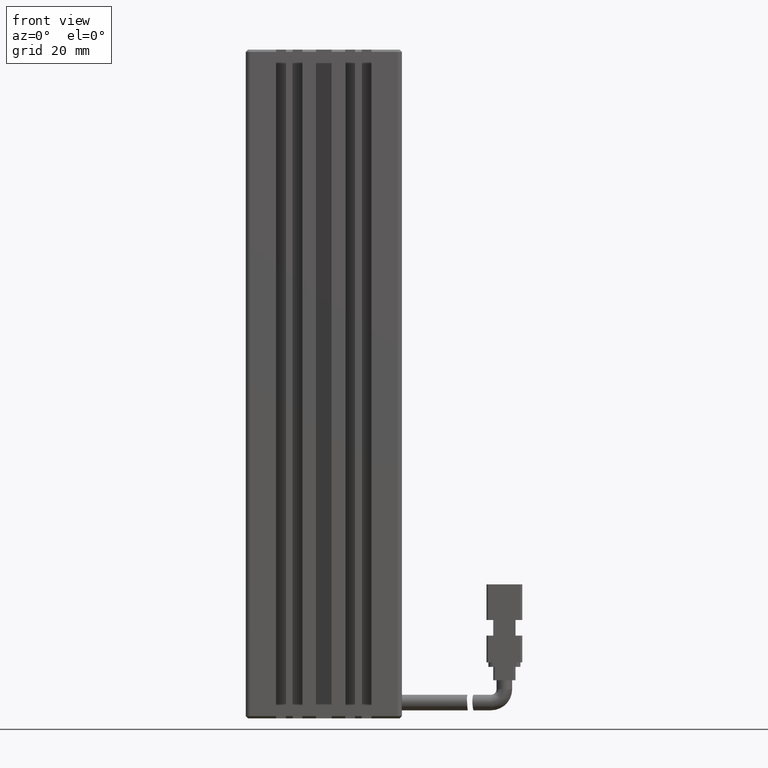
[diagram: clean part render]
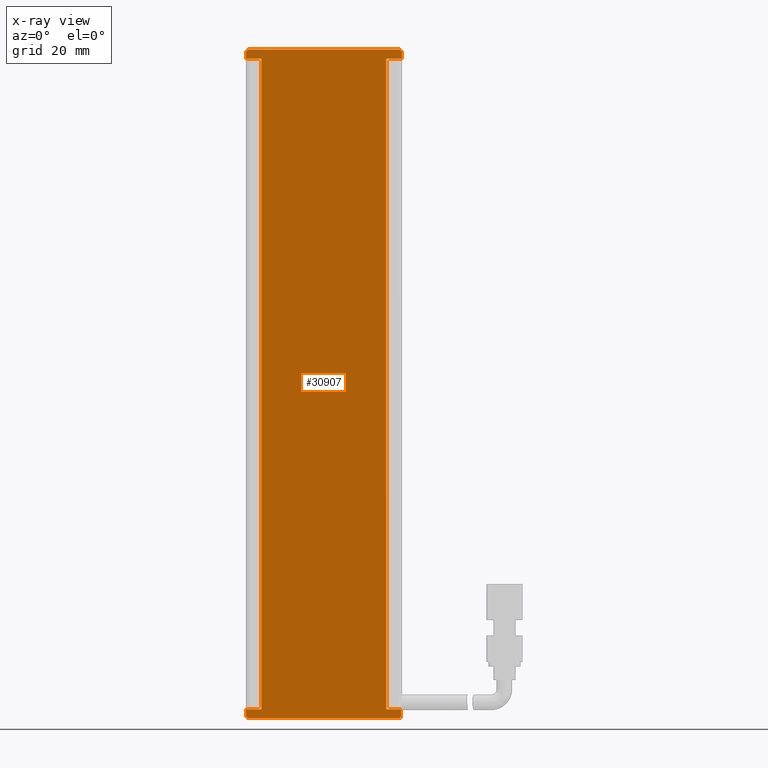
[diagram: x-ray — body ghosted, one internal face saturated and labeled with its STEP entity id]
A machine part, front view, then the same camera in x-ray: the body is ghosted and one INTERNAL B-rep face — a face not visible from any outside direction — is saturated and labeled: STEP entity #30907.
In plain terms, the highlighted planar face has unit normal (0, -1, 0).
Its self-contained STEP definition (entity closure, byte-faithful):
#1647 = ORIENTED_EDGE ( 'NONE', *, *, #33229, .F. ) ;
#2232 = EDGE_CURVE ( 'NONE', #3684, #61801, #3594, .T. ) ;
#2883 = CARTESIAN_POINT ( 'NONE',  ( 23.42537974683542100, 19.49073232304836600, -188.0000000000000000 ) ) ;
#3594 = LINE ( 'NONE', #28041, #46405 ) ;
#3684 = VERTEX_POINT ( 'NONE', #45378 ) ;
#3824 = DIRECTION ( 'NONE',  ( 1.000000000000000000, 1.239088197126290600E-016, 0.0000000000000000000 ) ) ;
#4135 = LINE ( 'NONE', #57680, #51954 ) ;
#4251 = DIRECTION ( 'NONE',  ( 1.000000000000000000, 1.239088197126290600E-016, 0.0000000000000000000 ) ) ;
#5557 = DIRECTION ( 'NONE',  ( 0.0000000000000000000, -0.0000000000000000000, -1.000000000000000000 ) ) ;
#7030 = CARTESIAN_POINT ( 'NONE',  ( 23.92537974683539700, 19.49073232304836600, -40.00000000000000700 ) ) ;
#8715 = EDGE_CURVE ( 'NONE', #18840, #54037, #47961, .T. ) ;
#8861 = ORIENTED_EDGE ( 'NONE', *, *, #45555, .F. ) ;
#9090 = DIRECTION ( 'NONE',  ( 1.239088197126290600E-016, -1.000000000000000000, 0.0000000000000000000 ) ) ;
#9471 = DIRECTION ( 'NONE',  ( -1.000000000000000000, -1.239088197126290600E-016, -0.0000000000000000000 ) ) ;
#11445 = CARTESIAN_POINT ( 'NONE',  ( 57.92537974683543900, 19.49073232304837000, -40.00000000000000700 ) ) ;
#11501 = LINE ( 'NONE', #11445, #67865 ) ;
#11793 = DIRECTION ( 'NONE',  ( -0.7071067811865474600, -0.0000000000000000000, -0.7071067811865474600 ) ) ;
#11950 = EDGE_CURVE ( 'NONE', #43258, #65016, #58307, .T. ) ;
#12115 = EDGE_CURVE ( 'NONE', #18840, #43258, #64274, .T. ) ;
#12645 = CARTESIAN_POINT ( 'NONE',  ( 54.92537974683542500, 19.49073232304837000, -188.0000000000000000 ) ) ;
#13010 = VERTEX_POINT ( 'NONE', #21828 ) ;
#13257 = ORIENTED_EDGE ( 'NONE', *, *, #47450, .F. ) ;
#14149 = VECTOR ( 'NONE', #67114, 1000.000000000000000 ) ;
#14936 = VERTEX_POINT ( 'NONE', #36155 ) ;
#15056 = VECTOR ( 'NONE', #4251, 1000.000000000000000 ) ;
#15107 = ORIENTED_EDGE ( 'NONE', *, *, #68449, .F. ) ;
#15326 = DIRECTION ( 'NONE',  ( -1.000000000000000000, -1.239088197126290600E-016, -0.0000000000000000000 ) ) ;
#15348 = EDGE_CURVE ( 'NONE', #42327, #15738, #53443, .T. ) ;
#15738 = VERTEX_POINT ( 'NONE', #12645 ) ;
#18840 = VERTEX_POINT ( 'NONE', #54348 ) ;
#19097 = CARTESIAN_POINT ( 'NONE',  ( 54.92537974683542500, 19.49073232304837000, -40.00000000000000700 ) ) ;
#19386 = EDGE_LOOP ( 'NONE', ( #29034, #23649, #1647, #43882, #47633, #46371, #13257, #58872, #28713, #46678, #55854, #15107, #35533, #8861, #27258, #43561 ) ) ;
#19390 = CARTESIAN_POINT ( 'NONE',  ( 58.27537974683539800, 19.49073232304837000, -188.0000000000000000 ) ) ;
#19474 = DIRECTION ( 'NONE',  ( -0.0000000000000000000, -0.0000000000000000000, -1.000000000000000000 ) ) ;
#20996 = LINE ( 'NONE', #31139, #62815 ) ;
#21828 = CARTESIAN_POINT ( 'NONE',  ( 58.42537974683542500, 19.49073232304837000, -40.50000000000002100 ) ) ;
#22458 = VECTOR ( 'NONE', #19474, 1000.000000000000000 ) ;
#22883 = DIRECTION ( 'NONE',  ( -1.000000000000000000, -1.239088197126290600E-016, -0.0000000000000000000 ) ) ;
#23110 = CARTESIAN_POINT ( 'NONE',  ( 40.92537974683542500, 19.49073232304837000, -40.00000000000000700 ) ) ;
#23413 = VECTOR ( 'NONE', #5557, 1000.000000000000000 ) ;
#23649 = ORIENTED_EDGE ( 'NONE', *, *, #2232, .T. ) ;
#23929 = CARTESIAN_POINT ( 'NONE',  ( 23.42537974683541100, 19.49073232304836600, -189.5000000000000000 ) ) ;
#25650 = DIRECTION ( 'NONE',  ( 1.000000000000000000, 1.239088197126290600E-016, 0.0000000000000000000 ) ) ;
#25815 = EDGE_CURVE ( 'NONE', #43226, #54037, #39988, .T. ) ;
#26067 = CARTESIAN_POINT ( 'NONE',  ( 40.92537974683542500, 19.49073232304837000, -188.0000000000000000 ) ) ;
#26949 = EDGE_CURVE ( 'NONE', #15738, #14936, #46587, .T. ) ;
#27258 = ORIENTED_EDGE ( 'NONE', *, *, #26949, .F. ) ;
#27417 = VECTOR ( 'NONE', #45989, 1000.000000000000000 ) ;
#28041 = CARTESIAN_POINT ( 'NONE',  ( 58.42537974683542500, 19.49073232304837700, -189.5000000000000300 ) ) ;
#28308 = EDGE_CURVE ( 'NONE', #54773, #36997, #37044, .T. ) ;
#28688 = LINE ( 'NONE', #67359, #14149 ) ;
#28713 = ORIENTED_EDGE ( 'NONE', *, *, #12115, .F. ) ;
#29034 = ORIENTED_EDGE ( 'NONE', *, *, #36960, .T. ) ;
#29291 = CARTESIAN_POINT ( 'NONE',  ( 40.92537974683542500, 19.49073232304837000, -42.00000000000000700 ) ) ;
#30291 = DIRECTION ( 'NONE',  ( 0.7071067811865376900, -0.0000000000000000000, 0.7071067811865574500 ) ) ;
#30899 = CARTESIAN_POINT ( 'NONE',  ( 40.92537974683542500, 19.49073232304837000, -40.00000000000000700 ) ) ;
#30907 = ADVANCED_FACE ( 'NONE', ( #36319 ), #31137, .F. ) ;
#31137 = PLANE ( 'NONE',  #57243 ) ;
#31139 = CARTESIAN_POINT ( 'NONE',  ( 58.42537974683542500, 19.49073232304837000, -40.00000000000000700 ) ) ;
#33229 = EDGE_CURVE ( 'NONE', #46312, #61801, #48381, .T. ) ;
#33440 = VECTOR ( 'NONE', #30291, 999.9999999999998900 ) ;
#33917 = VERTEX_POINT ( 'NONE', #66437 ) ;
#34229 = CARTESIAN_POINT ( 'NONE',  ( 26.92537974683542100, 19.49073232304836600, -42.00000000000000700 ) ) ;
#34270 = LINE ( 'NONE', #29291, #27417 ) ;
#34724 = VECTOR ( 'NONE', #15326, 1000.000000000000000 ) ;
#35533 = ORIENTED_EDGE ( 'NONE', *, *, #54848, .T. ) ;
#36155 = CARTESIAN_POINT ( 'NONE',  ( 54.92537974683542500, 19.49073232304837000, -42.00000000000000700 ) ) ;
#36319 = FACE_OUTER_BOUND ( 'NONE', #19386, .T. ) ;
#36517 = CARTESIAN_POINT ( 'NONE',  ( 23.42537974683542100, 19.49073232304836600, -40.49999999999999300 ) ) ;
#36581 = CARTESIAN_POINT ( 'NONE',  ( 40.92537974683542500, 19.49073232304837000, -42.00000000000000700 ) ) ;
#36960 = EDGE_CURVE ( 'NONE', #42327, #3684, #28688, .T. ) ;
#36997 = VERTEX_POINT ( 'NONE', #23929 ) ;
#37044 = LINE ( 'NONE', #40577, #22458 ) ;
#37295 = CARTESIAN_POINT ( 'NONE',  ( 40.92537974683542500, 19.49073232304837000, -190.0000000000000000 ) ) ;
#38005 = LINE ( 'NONE', #54307, #23413 ) ;
#38776 = CARTESIAN_POINT ( 'NONE',  ( 23.42537974683542100, 19.49073232304836600, -40.00000000000000700 ) ) ;
#38823 = EDGE_CURVE ( 'NONE', #48924, #54773, #4135, .T. ) ;
#39988 = LINE ( 'NONE', #23110, #59557 ) ;
#40577 = CARTESIAN_POINT ( 'NONE',  ( 23.42537974683542100, 19.49073232304836600, -40.00000000000000700 ) ) ;
#40974 = CARTESIAN_POINT ( 'NONE',  ( 57.92537974683544600, 19.49073232304837700, -190.0000000000000000 ) ) ;
#41402 = CARTESIAN_POINT ( 'NONE',  ( 23.92537974683541100, 19.49073232304836600, -190.0000000000000000 ) ) ;
#42327 = VERTEX_POINT ( 'NONE', #19390 ) ;
#43226 = VERTEX_POINT ( 'NONE', #69846 ) ;
#43258 = VERTEX_POINT ( 'NONE', #59509 ) ;
#43465 = EDGE_CURVE ( 'NONE', #36997, #46312, #58100, .T. ) ;
#43561 = ORIENTED_EDGE ( 'NONE', *, *, #15348, .F. ) ;
#43882 = ORIENTED_EDGE ( 'NONE', *, *, #43465, .F. ) ;
#44717 = VECTOR ( 'NONE', #55175, 1000.000000000000000 ) ;
#45378 = CARTESIAN_POINT ( 'NONE',  ( 58.27537974683539800, 19.49073232304837300, -189.6500000000000300 ) ) ;
#45555 = EDGE_CURVE ( 'NONE', #14936, #33917, #34270, .T. ) ;
#45989 = DIRECTION ( 'NONE',  ( 1.000000000000000000, 1.239088197126290600E-016, 0.0000000000000000000 ) ) ;
#46312 = VERTEX_POINT ( 'NONE', #41402 ) ;
#46371 = ORIENTED_EDGE ( 'NONE', *, *, #38823, .F. ) ;
#46405 = VECTOR ( 'NONE', #11793, 1000.000000000000100 ) ;
#46587 = LINE ( 'NONE', #19097, #52487 ) ;
#46678 = ORIENTED_EDGE ( 'NONE', *, *, #8715, .T. ) ;
#47450 = EDGE_CURVE ( 'NONE', #65016, #48924, #38005, .T. ) ;
#47633 = ORIENTED_EDGE ( 'NONE', *, *, #28308, .F. ) ;
#47961 = LINE ( 'NONE', #36517, #33440 ) ;
#48381 = LINE ( 'NONE', #37295, #15056 ) ;
#48924 = VERTEX_POINT ( 'NONE', #55395 ) ;
#49655 = DIRECTION ( 'NONE',  ( -0.7071067811865378000, -0.0000000000000000000, 0.7071067811865573400 ) ) ;
#51109 = DIRECTION ( 'NONE',  ( -0.0000000000000000000, 0.0000000000000000000, 1.000000000000000000 ) ) ;
#51954 = VECTOR ( 'NONE', #9471, 1000.000000000000000 ) ;
#52487 = VECTOR ( 'NONE', #51109, 1000.000000000000000 ) ;
#53443 = LINE ( 'NONE', #26067, #34724 ) ;
#54037 = VERTEX_POINT ( 'NONE', #7030 ) ;
#54307 = CARTESIAN_POINT ( 'NONE',  ( 26.92537974683542100, 19.49073232304836600, -40.00000000000000700 ) ) ;
#54348 = CARTESIAN_POINT ( 'NONE',  ( 23.42537974683542100, 19.49073232304836600, -40.49999999999999300 ) ) ;
#54773 = VERTEX_POINT ( 'NONE', #2883 ) ;
#54848 = EDGE_CURVE ( 'NONE', #13010, #33917, #20996, .T. ) ;
#55175 = DIRECTION ( 'NONE',  ( -0.0000000000000000000, -0.0000000000000000000, -1.000000000000000000 ) ) ;
#55224 = CARTESIAN_POINT ( 'NONE',  ( 23.92537974683541100, 19.49073232304836600, -190.0000000000000000 ) ) ;
#55395 = CARTESIAN_POINT ( 'NONE',  ( 26.92537974683542100, 19.49073232304836600, -188.0000000000000000 ) ) ;
#55854 = ORIENTED_EDGE ( 'NONE', *, *, #25815, .F. ) ;
#57243 = AXIS2_PLACEMENT_3D ( 'NONE', #30899, #9090, #3824 ) ;
#57680 = CARTESIAN_POINT ( 'NONE',  ( 40.92537974683542500, 19.49073232304837000, -188.0000000000000000 ) ) ;
#58100 = LINE ( 'NONE', #55224, #59833 ) ;
#58307 = LINE ( 'NONE', #36581, #60926 ) ;
#58699 = DIRECTION ( 'NONE',  ( -0.0000000000000000000, -0.0000000000000000000, -1.000000000000000000 ) ) ;
#58872 = ORIENTED_EDGE ( 'NONE', *, *, #11950, .F. ) ;
#59509 = CARTESIAN_POINT ( 'NONE',  ( 23.42537974683542100, 19.49073232304836600, -42.00000000000000700 ) ) ;
#59557 = VECTOR ( 'NONE', #22883, 1000.000000000000000 ) ;
#59833 = VECTOR ( 'NONE', #65742, 1000.000000000000000 ) ;
#60926 = VECTOR ( 'NONE', #25650, 1000.000000000000000 ) ;
#61801 = VERTEX_POINT ( 'NONE', #40974 ) ;
#62815 = VECTOR ( 'NONE', #58699, 1000.000000000000000 ) ;
#64274 = LINE ( 'NONE', #38776, #44717 ) ;
#65016 = VERTEX_POINT ( 'NONE', #34229 ) ;
#65742 = DIRECTION ( 'NONE',  ( 0.7071067811865378000, -0.0000000000000000000, -0.7071067811865573400 ) ) ;
#66437 = CARTESIAN_POINT ( 'NONE',  ( 58.42537974683542500, 19.49073232304837000, -42.00000000000000700 ) ) ;
#67114 = DIRECTION ( 'NONE',  ( 5.595882180570460600E-016, 5.595882180570315600E-016, -1.000000000000000000 ) ) ;
#67359 = CARTESIAN_POINT ( 'NONE',  ( 58.27537974683539800, 19.49073232304837000, -188.0000000000000000 ) ) ;
#67865 = VECTOR ( 'NONE', #49655, 1000.000000000000000 ) ;
#68449 = EDGE_CURVE ( 'NONE', #13010, #43226, #11501, .T. ) ;
#69846 = CARTESIAN_POINT ( 'NONE',  ( 57.92537974683543900, 19.49073232304837000, -40.00000000000000700 ) ) ;